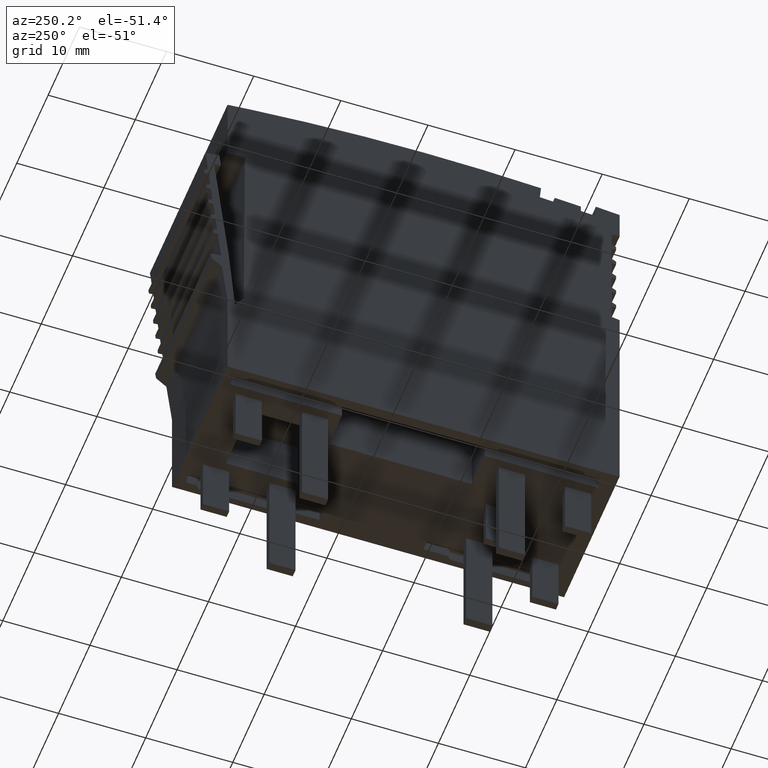
[diagram: clean part render]
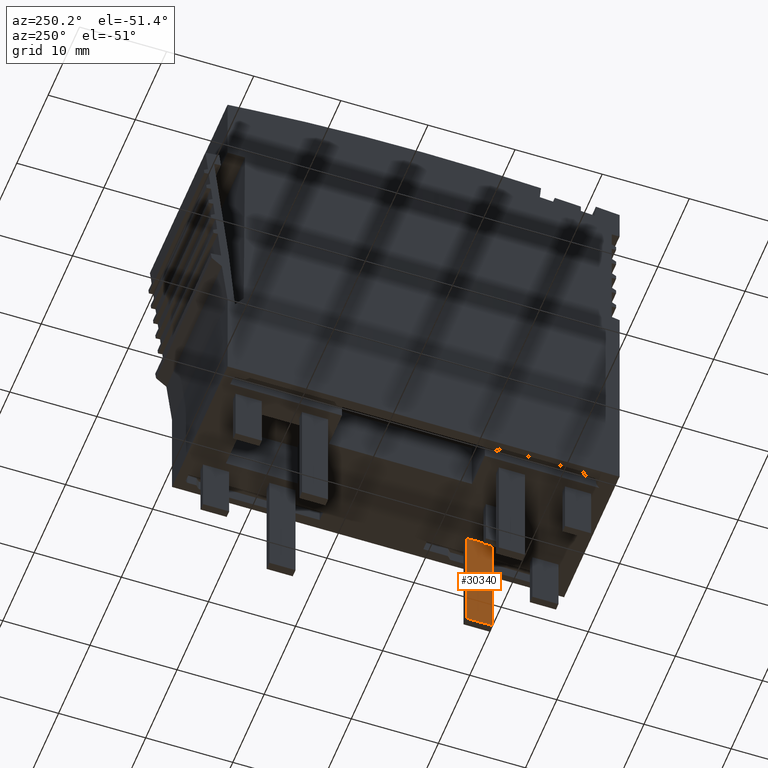
[diagram: same view with one face highlighted and labeled with its STEP entity id]
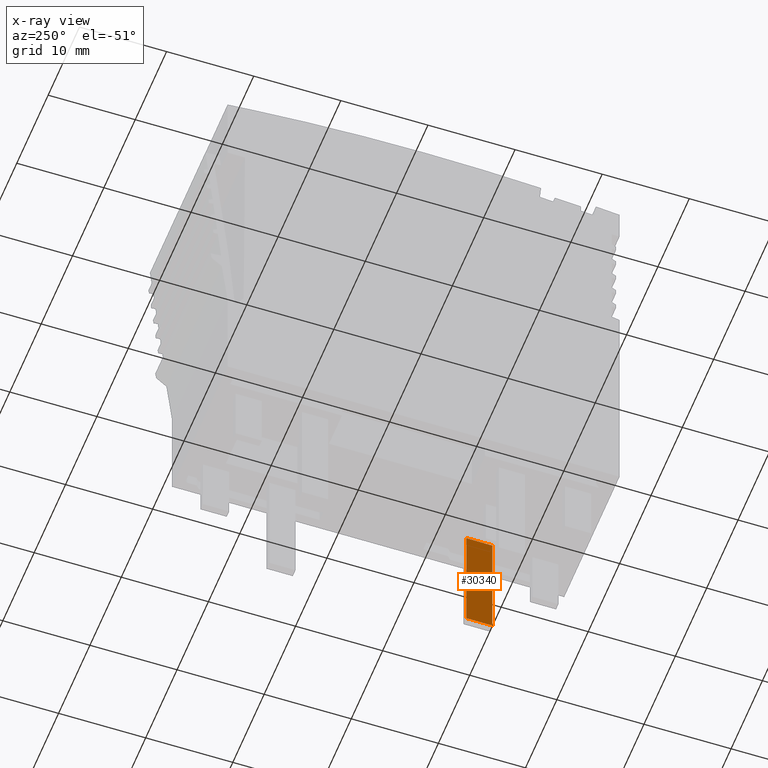
[diagram: x-ray of the same camera — body ghosted, the highlighted face saturated]
A machine part, auxiliary view. The second image highlights one B-rep face of the part: STEP entity #30340.
The next image is the same camera in x-ray: the body ghosted, the highlighted face saturated — about 0% of this face is hidden behind the body in this view.
In plain terms, the highlighted planar face has unit normal (-1, 0, 0).
Its self-contained STEP definition (entity closure, byte-faithful):
#16310=CARTESIAN_POINT('',(96.2363660496791,56.4590821833395,
-7.04451406745861));
#16320=DIRECTION('',(1.,1.81672225352878E-26,-1.50463276905253E-36));
#16330=VECTOR('',#16320,1.);
#16340=LINE('',#16310,#16330);
#16350=CARTESIAN_POINT('',(153.976442648636,56.4590821833395,
-7.04451406745861));
#16360=VERTEX_POINT('',#16350);
#16370=CARTESIAN_POINT('',(156.976442647341,56.4590821833395,
-7.04451406745861));
#16380=VERTEX_POINT('',#16370);
#16390=EDGE_CURVE('',#16360,#16380,#16340,.T.);
#29900=CARTESIAN_POINT('',(156.976442647341,42.6090823777492,
-7.04451406745861));
#29910=VERTEX_POINT('',#29900);
#29940=CARTESIAN_POINT('',(156.976442647341,53.560123,-7.04451406745861)
);
#29950=DIRECTION('',(2.34090683382861E-26,-1.,2.77478453548207E-17));
#29960=VECTOR('',#29950,1.);
#29970=LINE('',#29940,#29960);
#29980=EDGE_CURVE('',#16380,#29910,#29970,.T.);
#30110=CARTESIAN_POINT('',(153.976442648636,56.4590821833395,
-7.04451406745861));
#30120=DIRECTION('',(1.50463205177811E-36,2.77478453548207E-17,1.));
#30130=DIRECTION('',(1.,2.58497339728593E-26,-1.50463276905253E-36));
#30140=AXIS2_PLACEMENT_3D('',#30110,#30120,#30130);
#30150=PLANE('',#30140);
#30160=ORIENTED_EDGE('',*,*,#29980,.F.);
#30170=CARTESIAN_POINT('',(96.2363660496791,42.6090823724088,
-7.04451406745861));
#30180=DIRECTION('',(-1.,-8.7922114033708E-11,-6.4623485340659E-27));
#30190=VECTOR('',#30180,1.);
#30200=LINE('',#30170,#30190);
#30210=CARTESIAN_POINT('',(153.976442648636,42.6090823774854,
-7.04451406745861));
#30220=VERTEX_POINT('',#30210);
#30230=EDGE_CURVE('',#29910,#30220,#30200,.T.);
#30240=ORIENTED_EDGE('',*,*,#30230,.F.);
#30250=CARTESIAN_POINT('',(153.976442648636,53.560123,-7.04451406745861)
);
#30260=DIRECTION('',(2.34090683382861E-26,-1.,2.77478453548207E-17));
#30270=VECTOR('',#30260,1.);
#30280=LINE('',#30250,#30270);
#30290=EDGE_CURVE('',#16360,#30220,#30280,.T.);
#30300=ORIENTED_EDGE('',*,*,#30290,.T.);
#30310=ORIENTED_EDGE('',*,*,#16390,.F.);
#30320=EDGE_LOOP('',(#30310,#30300,#30240,#30160));
#30330=FACE_OUTER_BOUND('',#30320,.T.);
#30340=ADVANCED_FACE('',(#30330),#30150,.T.);